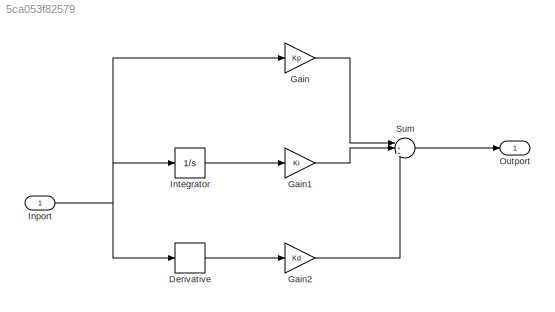
MODEL slx_5ca053f82579
KIND model
CONFIG AbsTol = auto
CONFIG EnableMultiTasking = off
CONFIG FixedStep = auto
CONFIG MaxStep = auto
CONFIG MinStep = auto
CONFIG RelTol = 1e-3
CONFIG SampleTimeConstraint = Unconstrained
CONFIG SolverName = VariableStepAuto
CONFIG StartTime = 0.0
CONFIG StopTime = 10.0
BLOCK [Derivative] Derivative
BLOCK [Gain] Gain
  Gain = Kp
BLOCK [Gain] Gain1
  Gain = Ki
BLOCK [Gain] Gain2
  Gain = Kd
BLOCK [Inport] Inport
  OutDataTypeStr = double
  PortDimensions = 1
  SamplingMode = Sample based
  SignalType = real
BLOCK [Integrator] Integrator
  Ports = [1, 1]
BLOCK [Outport] Outport
  OutDataTypeStr = double
  PortDimensions = 1
  SampleTime = 0
  SamplingMode = Sample based
  SignalType = real
BLOCK [Sum] Sum
  Inputs = |+++
  Ports = [3, 1]
LINE Derivative:1 -> Gain2:1
LINE Gain1:1 -> Sum:2
LINE Gain2:1 -> Sum:3
LINE Gain:1 -> Sum:1
NET Inport:1 -> Derivative:1, Gain:1, Integrator:1
LINE Integrator:1 -> Gain1:1
LINE Sum:1 -> Outport:1
note: NET lines group one-source signal fan-out (src -> all destinations, sorted); 1:1 wires keep LINE
